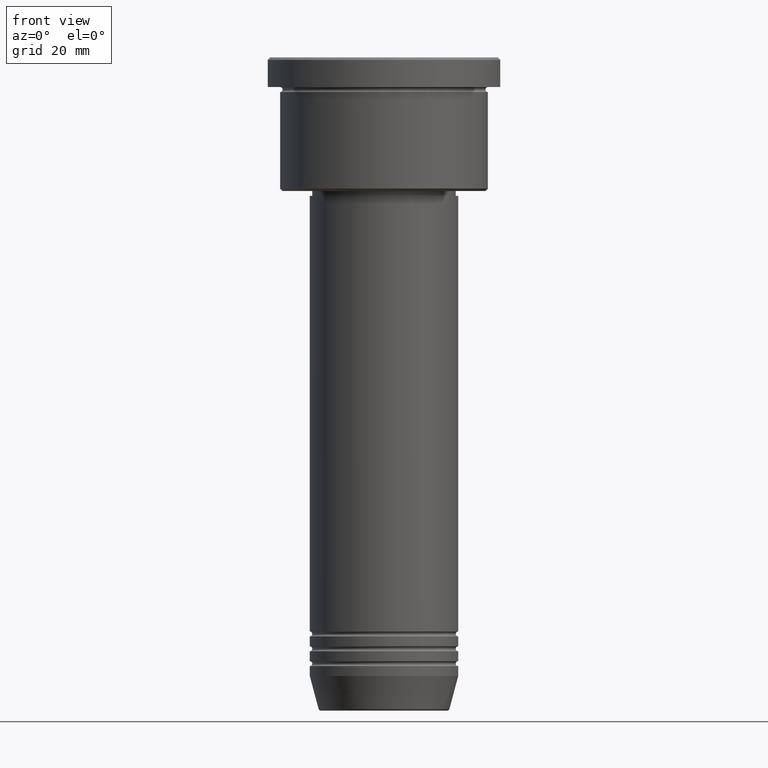
[diagram: clean part render]
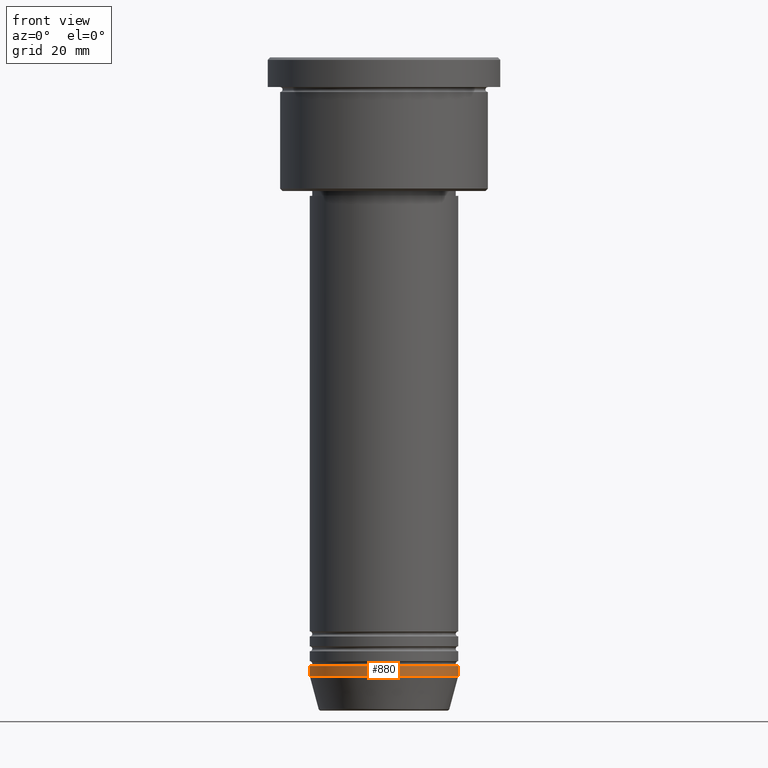
[diagram: same view with one face highlighted and labeled with its STEP entity id]
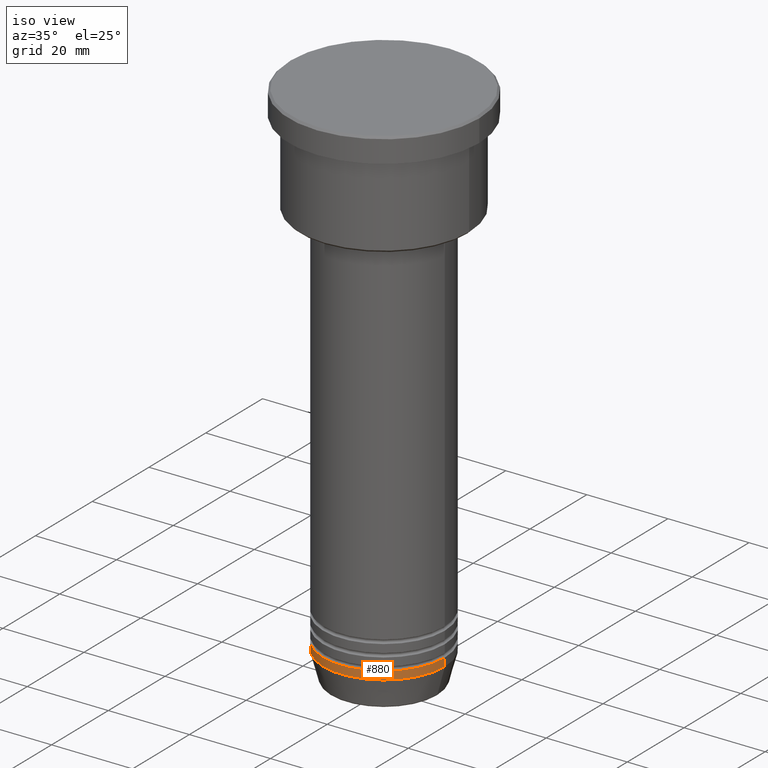
[diagram: same view with one face highlighted and labeled with its STEP entity id]
A machine part, front view. The second image highlights one B-rep face of the part: STEP entity #880.
A second angle (iso view) of the same face is appended — the face is thin or edge-on in the first view.
In plain terms, the highlighted cylindrical surface (partial cylindrical patch) has radius 15 mm, axis along (-0, -0, 1).
Its self-contained STEP definition (entity closure, byte-faithful):
#31 = EDGE_CURVE ( 'NONE', #144, #874, #944, .T. ) ;
#33 = CARTESIAN_POINT ( 'NONE',  ( 0.000000000000000000, 0.000000000000000000, 0.000000000000000000 ) ) ;
#70 = DIRECTION ( 'NONE',  ( -0.000000000000000000, -0.000000000000000000, 1.000000000000000000 ) ) ;
#79 = DIRECTION ( 'NONE',  ( 1.000000000000000000, 0.000000000000000000, 0.000000000000000000 ) ) ;
#91 = AXIS2_PLACEMENT_3D ( 'NONE', #433, #977, #526 ) ;
#144 = VERTEX_POINT ( 'NONE', #480 ) ;
#322 = CARTESIAN_POINT ( 'NONE',  ( -15.00000000000000000, 1.836970198721029589E-15, 0.000000000000000000 ) ) ;
#324 = CARTESIAN_POINT ( 'NONE',  ( 15.00000000000000000, 0.000000000000000000, -125.0000000000000000 ) ) ;
#342 = CARTESIAN_POINT ( 'NONE',  ( 15.00000000000000000, 0.000000000000000000, 0.000000000000000000 ) ) ;
#350 = ORIENTED_EDGE ( 'NONE', *, *, #1088, .T. ) ;
#422 = DIRECTION ( 'NONE',  ( -0.000000000000000000, -0.000000000000000000, 1.000000000000000000 ) ) ;
#424 = ORIENTED_EDGE ( 'NONE', *, *, #904, .F. ) ;
#433 = CARTESIAN_POINT ( 'NONE',  ( 0.000000000000000000, 0.000000000000000000, -123.0000000000000000 ) ) ;
#453 = VERTEX_POINT ( 'NONE', #324 ) ;
#463 = VECTOR ( 'NONE', #966, 1000.000000000000000 ) ;
#471 = VERTEX_POINT ( 'NONE', #1148 ) ;
#480 = CARTESIAN_POINT ( 'NONE',  ( -15.00000000000000000, 1.836970198721029589E-15, -123.0000000000000000 ) ) ;
#486 = VECTOR ( 'NONE', #422, 1000.000000000000000 ) ;
#521 = EDGE_CURVE ( 'NONE', #453, #874, #576, .T. ) ;
#526 = DIRECTION ( 'NONE',  ( 1.000000000000000000, 0.000000000000000000, 0.000000000000000000 ) ) ;
#576 = LINE ( 'NONE', #342, #463 ) ;
#615 = ORIENTED_EDGE ( 'NONE', *, *, #31, .F. ) ;
#621 = ORIENTED_EDGE ( 'NONE', *, *, #521, .T. ) ;
#698 = AXIS2_PLACEMENT_3D ( 'NONE', #1159, #70, #79 ) ;
#771 = DIRECTION ( 'NONE',  ( 1.000000000000000000, 0.000000000000000000, 0.000000000000000000 ) ) ;
#782 = FACE_OUTER_BOUND ( 'NONE', #834, .T. ) ;
#789 = CIRCLE ( 'NONE', #698, 15.00000000000000000 ) ;
#834 = EDGE_LOOP ( 'NONE', ( #424, #350, #621, #615 ) ) ;
#864 = CARTESIAN_POINT ( 'NONE',  ( 15.00000000000000000, 0.000000000000000000, -123.0000000000000000 ) ) ;
#874 = VERTEX_POINT ( 'NONE', #864 ) ;
#880 = ADVANCED_FACE ( 'NONE', ( #782 ), #1126, .T. ) ;
#904 = EDGE_CURVE ( 'NONE', #471, #144, #1038, .T. ) ;
#944 = CIRCLE ( 'NONE', #91, 15.00000000000000000 ) ;
#957 = DIRECTION ( 'NONE',  ( -0.000000000000000000, -0.000000000000000000, 1.000000000000000000 ) ) ;
#966 = DIRECTION ( 'NONE',  ( -0.000000000000000000, -0.000000000000000000, 1.000000000000000000 ) ) ;
#977 = DIRECTION ( 'NONE',  ( -0.000000000000000000, -0.000000000000000000, 1.000000000000000000 ) ) ;
#986 = AXIS2_PLACEMENT_3D ( 'NONE', #33, #957, #771 ) ;
#1038 = LINE ( 'NONE', #322, #486 ) ;
#1088 = EDGE_CURVE ( 'NONE', #471, #453, #789, .T. ) ;
#1126 = CYLINDRICAL_SURFACE ( 'NONE', #986, 15.00000000000000000 ) ;
#1148 = CARTESIAN_POINT ( 'NONE',  ( -15.00000000000000000, 1.836970198721029589E-15, -125.0000000000000000 ) ) ;
#1159 = CARTESIAN_POINT ( 'NONE',  ( 0.000000000000000000, 0.000000000000000000, -125.0000000000000000 ) ) ;